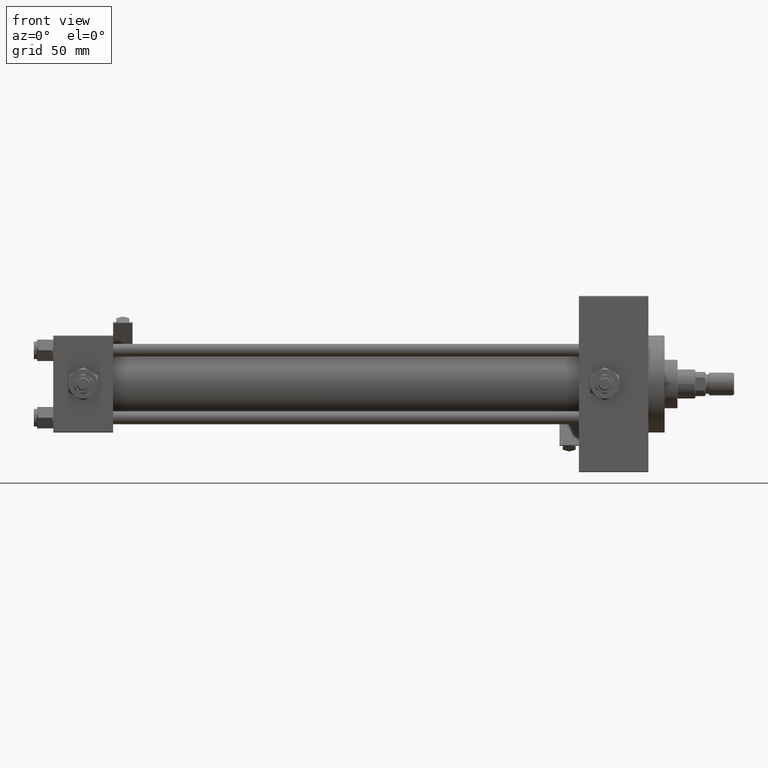
[diagram: clean part render]
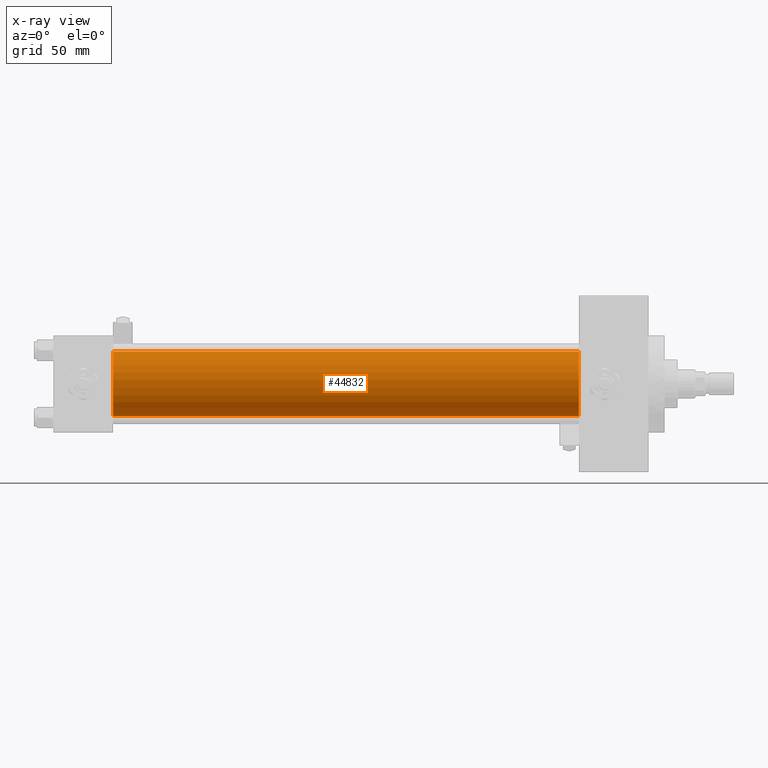
[diagram: x-ray — body ghosted, one internal face saturated and labeled with its STEP entity id]
A machine part, front view, then the same camera in x-ray: the body is ghosted and one INTERNAL B-rep face — a face not visible from any outside direction — is saturated and labeled: STEP entity #44832.
In plain terms, the highlighted cylindrical surface (edge-blend (fillet) strip) has radius 20 mm, axis along (-1, -0, -0).
Its self-contained STEP definition (entity closure, byte-faithful):
#387 = CARTESIAN_POINT ( 'NONE',  ( 324.9999999999999432, -2.602085213965210642E-15, 20.00000000000000000 ) ) ;
#504 = VERTEX_POINT ( 'NONE', #50421 ) ;
#1064 = CIRCLE ( 'NONE', #20813, 20.00000000000000000 ) ;
#2602 = DIRECTION ( 'NONE',  ( 0.000000000000000000, 0.000000000000000000, -1.000000000000000000 ) ) ;
#5999 = VERTEX_POINT ( 'NONE', #9496 ) ;
#6731 = VECTOR ( 'NONE', #13427, 1000.000000000000000 ) ;
#8640 = CARTESIAN_POINT ( 'NONE',  ( 324.9999999999999432, -1.527916156705042519E-16, -20.00000000000000000 ) ) ;
#9496 = CARTESIAN_POINT ( 'NONE',  ( 37.00000000000000000, -2.602085213965210642E-15, 20.00000000000000000 ) ) ;
#11431 = CYLINDRICAL_SURFACE ( 'NONE', #29782, 20.00000000000000000 ) ;
#12147 = VERTEX_POINT ( 'NONE', #26160 ) ;
#12680 = CARTESIAN_POINT ( 'NONE',  ( 324.9999999999999432, -2.602085213965210642E-15, 20.00000000000000000 ) ) ;
#13427 = DIRECTION ( 'NONE',  ( -1.000000000000000000, -0.000000000000000000, -0.000000000000000000 ) ) ;
#14206 = EDGE_CURVE ( 'NONE', #5999, #12147, #22929, .T. ) ;
#14292 = EDGE_LOOP ( 'NONE', ( #16142, #47866, #50239, #23619 ) ) ;
#14941 = DIRECTION ( 'NONE',  ( 0.000000000000000000, 0.000000000000000000, -1.000000000000000000 ) ) ;
#16142 = ORIENTED_EDGE ( 'NONE', *, *, #22976, .T. ) ;
#16350 = LINE ( 'NONE', #8640, #35567 ) ;
#19670 = AXIS2_PLACEMENT_3D ( 'NONE', #33948, #30093, #14941 ) ;
#20813 = AXIS2_PLACEMENT_3D ( 'NONE', #45266, #46282, #2602 ) ;
#22929 = CIRCLE ( 'NONE', #19670, 20.00000000000000000 ) ;
#22976 = EDGE_CURVE ( 'NONE', #50308, #504, #1064, .T. ) ;
#23244 = CARTESIAN_POINT ( 'NONE',  ( 324.9999999999999432, -2.602085213965210642E-15, 0.000000000000000000 ) ) ;
#23376 = EDGE_CURVE ( 'NONE', #504, #12147, #16350, .T. ) ;
#23619 = ORIENTED_EDGE ( 'NONE', *, *, #42931, .F. ) ;
#24308 = DIRECTION ( 'NONE',  ( -1.000000000000000000, -0.000000000000000000, -0.000000000000000000 ) ) ;
#26160 = CARTESIAN_POINT ( 'NONE',  ( 37.00000000000000000, -1.527916156705042519E-16, -20.00000000000000000 ) ) ;
#26602 = DIRECTION ( 'NONE',  ( 0.000000000000000000, 0.000000000000000000, 1.000000000000000000 ) ) ;
#27112 = DIRECTION ( 'NONE',  ( -1.000000000000000000, -0.000000000000000000, -0.000000000000000000 ) ) ;
#29782 = AXIS2_PLACEMENT_3D ( 'NONE', #23244, #27112, #26602 ) ;
#30093 = DIRECTION ( 'NONE',  ( 1.000000000000000000, 0.000000000000000000, 0.000000000000000000 ) ) ;
#33948 = CARTESIAN_POINT ( 'NONE',  ( 37.00000000000000000, -2.602085213965210642E-15, 0.000000000000000000 ) ) ;
#34565 = FACE_OUTER_BOUND ( 'NONE', #14292, .T. ) ;
#35567 = VECTOR ( 'NONE', #24308, 1000.000000000000000 ) ;
#37063 = LINE ( 'NONE', #12680, #6731 ) ;
#42931 = EDGE_CURVE ( 'NONE', #50308, #5999, #37063, .T. ) ;
#44832 = ADVANCED_FACE ( 'NONE', ( #34565 ), #11431, .F. ) ;
#45266 = CARTESIAN_POINT ( 'NONE',  ( 324.9999999999999432, -2.602085213965210642E-15, 0.000000000000000000 ) ) ;
#46282 = DIRECTION ( 'NONE',  ( 1.000000000000000000, 0.000000000000000000, 0.000000000000000000 ) ) ;
#47866 = ORIENTED_EDGE ( 'NONE', *, *, #23376, .T. ) ;
#50239 = ORIENTED_EDGE ( 'NONE', *, *, #14206, .F. ) ;
#50308 = VERTEX_POINT ( 'NONE', #387 ) ;
#50421 = CARTESIAN_POINT ( 'NONE',  ( 324.9999999999999432, -1.527916156705042519E-16, -20.00000000000000000 ) ) ;